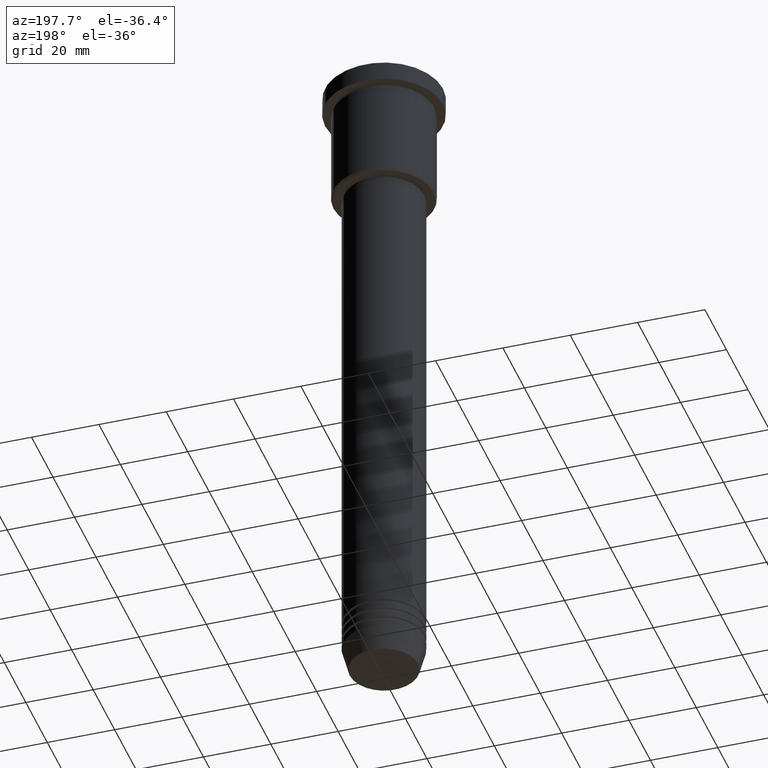
[diagram: clean part render]
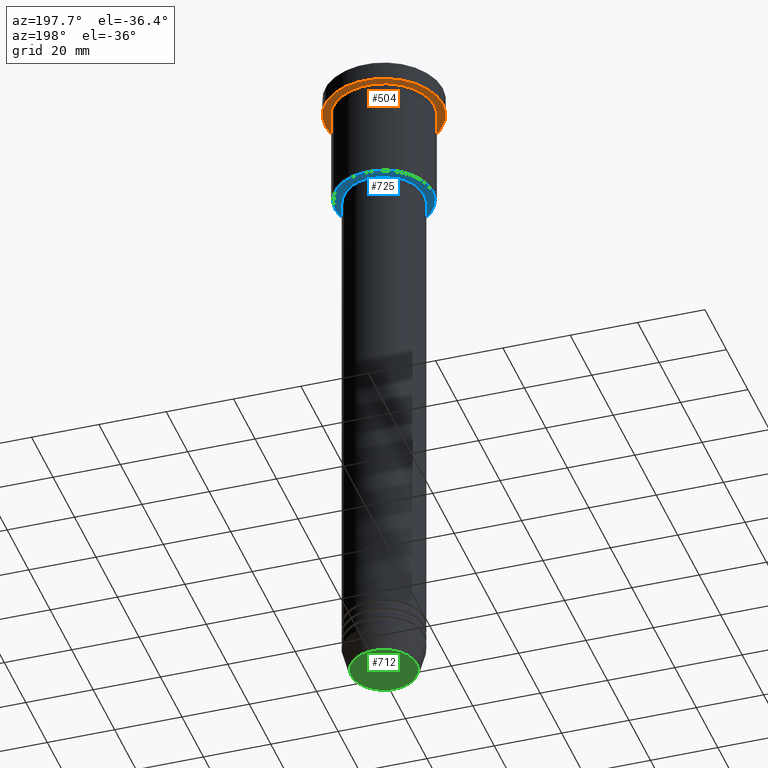
[diagram: same view with three faces highlighted in distinct colors, each labeled with its STEP entity id]
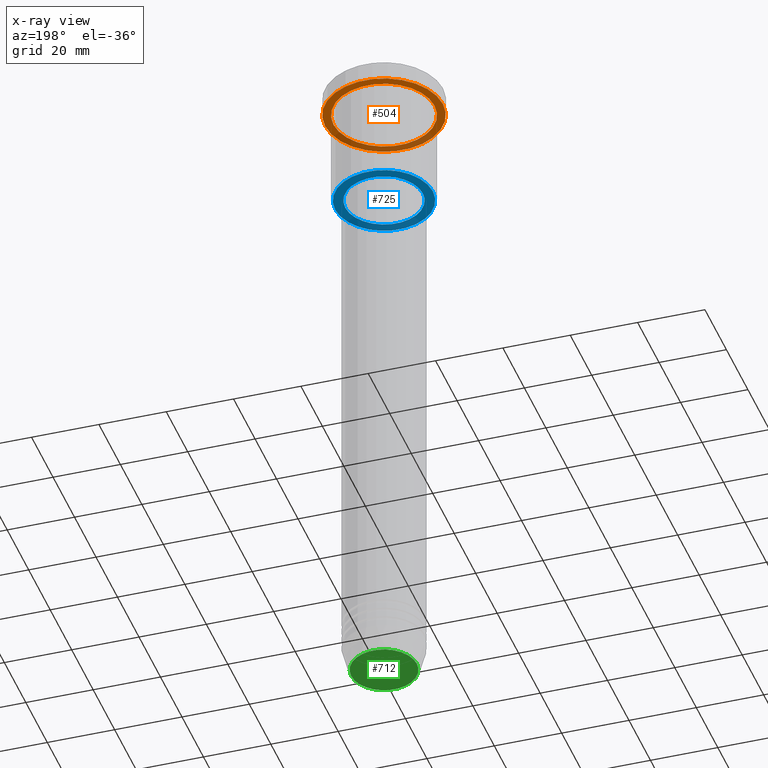
[diagram: x-ray of the same camera — body ghosted, the three highlighted faces saturated]
A machine part, auxiliary view with three faces highlighted in distinct colors.
The next image is the same camera in x-ray (body ghosted, the three faces saturated) — at least one of them is partly hidden behind the body in this view.
Their STEP definitions:

[orange] entity #504 — the highlighted planar face has unit normal (0, 0, -1).
#5 = AXIS2_PLACEMENT_3D ( 'NONE', #1050, #590, #950 ) ;
#15 = EDGE_LOOP ( 'NONE', ( #397, #513 ) ) ;
#24 = DIRECTION ( 'NONE',  ( -0.000000000000000000, -0.000000000000000000, 1.000000000000000000 ) ) ;
#57 = DIRECTION ( 'NONE',  ( -0.000000000000000000, -0.000000000000000000, 1.000000000000000000 ) ) ;
#149 = CIRCLE ( 'NONE', #1061, 15.00000000000000000 ) ;
#156 = CARTESIAN_POINT ( 'NONE',  ( 0.000000000000000000, 0.000000000000000000, -5.999999999999995559 ) ) ;
#201 = PLANE ( 'NONE',  #448 ) ;
#215 = DIRECTION ( 'NONE',  ( -1.000000000000000000, 0.000000000000000000, -0.000000000000000000 ) ) ;
#228 = CARTESIAN_POINT ( 'NONE',  ( 0.000000000000000000, 17.50000000000000000, -5.999999999999995559 ) ) ;
#268 = ORIENTED_EDGE ( 'NONE', *, *, #673, .T. ) ;
#277 = VERTEX_POINT ( 'NONE', #865 ) ;
#310 = CARTESIAN_POINT ( 'NONE',  ( 17.50000000000000000, 0.000000000000000000, -5.999999999999995559 ) ) ;
#389 = DIRECTION ( 'NONE',  ( 1.000000000000000000, 0.000000000000000000, 0.000000000000000000 ) ) ;
#397 = ORIENTED_EDGE ( 'NONE', *, *, #665, .F. ) ;
#417 = CARTESIAN_POINT ( 'NONE',  ( -15.00000000000000000, 0.000000000000000000, -5.999999999999994671 ) ) ;
#446 = VERTEX_POINT ( 'NONE', #310 ) ;
#448 = AXIS2_PLACEMENT_3D ( 'NONE', #228, #913, #215 ) ;
#466 = FACE_OUTER_BOUND ( 'NONE', #15, .T. ) ;
#504 = ADVANCED_FACE ( 'NONE', ( #918, #466 ), #201, .T. ) ;
#511 = EDGE_CURVE ( 'NONE', #277, #446, #826, .T. ) ;
#513 = ORIENTED_EDGE ( 'NONE', *, *, #511, .F. ) ;
#563 = CARTESIAN_POINT ( 'NONE',  ( 0.000000000000000000, 0.000000000000000000, -5.999999999999995559 ) ) ;
#590 = DIRECTION ( 'NONE',  ( -0.000000000000000000, -0.000000000000000000, 1.000000000000000000 ) ) ;
#613 = CIRCLE ( 'NONE', #5, 15.00000000000000000 ) ;
#665 = EDGE_CURVE ( 'NONE', #446, #277, #758, .T. ) ;
#670 = VERTEX_POINT ( 'NONE', #417 ) ;
#673 = EDGE_CURVE ( 'NONE', #670, #1044, #613, .T. ) ;
#698 = CARTESIAN_POINT ( 'NONE',  ( 15.00000000000000000, 1.836970198721029589E-15, -5.999999999999994671 ) ) ;
#705 = EDGE_LOOP ( 'NONE', ( #268, #764 ) ) ;
#758 = CIRCLE ( 'NONE', #1136, 17.50000000000000000 ) ;
#764 = ORIENTED_EDGE ( 'NONE', *, *, #806, .T. ) ;
#806 = EDGE_CURVE ( 'NONE', #1044, #670, #149, .T. ) ;
#826 = CIRCLE ( 'NONE', #943, 17.50000000000000000 ) ;
#865 = CARTESIAN_POINT ( 'NONE',  ( -17.50000000000000000, 2.143131898507868248E-15, -5.999999999999995559 ) ) ;
#913 = DIRECTION ( 'NONE',  ( 0.000000000000000000, 0.000000000000000000, -1.000000000000000000 ) ) ;
#918 = FACE_BOUND ( 'NONE', #705, .T. ) ;
#943 = AXIS2_PLACEMENT_3D ( 'NONE', #563, #24, #389 ) ;
#945 = DIRECTION ( 'NONE',  ( 1.000000000000000000, 0.000000000000000000, 0.000000000000000000 ) ) ;
#950 = DIRECTION ( 'NONE',  ( -1.000000000000000000, 0.000000000000000000, 0.000000000000000000 ) ) ;
#976 = CARTESIAN_POINT ( 'NONE',  ( 0.000000000000000000, 0.000000000000000000, -5.999999999999995559 ) ) ;
#1044 = VERTEX_POINT ( 'NONE', #698 ) ;
#1050 = CARTESIAN_POINT ( 'NONE',  ( 0.000000000000000000, 0.000000000000000000, -5.999999999999995559 ) ) ;
#1061 = AXIS2_PLACEMENT_3D ( 'NONE', #976, #1074, #1180 ) ;
#1074 = DIRECTION ( 'NONE',  ( -0.000000000000000000, -0.000000000000000000, 1.000000000000000000 ) ) ;
#1136 = AXIS2_PLACEMENT_3D ( 'NONE', #156, #57, #945 ) ;
#1180 = DIRECTION ( 'NONE',  ( -1.000000000000000000, 0.000000000000000000, 0.000000000000000000 ) ) ;

[blue] entity #725 — the highlighted planar face has unit normal (0, 0, -1).
#54 = CARTESIAN_POINT ( 'NONE',  ( 0.000000000000000000, 0.000000000000000000, -36.00000000000000711 ) ) ;
#102 = EDGE_LOOP ( 'NONE', ( #115, #453 ) ) ;
#115 = ORIENTED_EDGE ( 'NONE', *, *, #1132, .T. ) ;
#130 = DIRECTION ( 'NONE',  ( -0.000000000000000000, -0.000000000000000000, 1.000000000000000000 ) ) ;
#207 = DIRECTION ( 'NONE',  ( 0.000000000000000000, 0.000000000000000000, -1.000000000000000000 ) ) ;
#213 = AXIS2_PLACEMENT_3D ( 'NONE', #767, #130, #506 ) ;
#232 = AXIS2_PLACEMENT_3D ( 'NONE', #298, #1036, #1111 ) ;
#234 = CARTESIAN_POINT ( 'NONE',  ( 11.50000000000000000, 0.000000000000000000, -36.00000000000000711 ) ) ;
#261 = CARTESIAN_POINT ( 'NONE',  ( 14.50000000000003908, 0.000000000000000000, -36.00000000000000711 ) ) ;
#291 = EDGE_CURVE ( 'NONE', #379, #674, #941, .T. ) ;
#294 = CARTESIAN_POINT ( 'NONE',  ( 0.000000000000000000, 0.000000000000000000, -36.00000000000000711 ) ) ;
#298 = CARTESIAN_POINT ( 'NONE',  ( 0.000000000000000000, 0.000000000000000000, -36.00000000000000711 ) ) ;
#363 = FACE_OUTER_BOUND ( 'NONE', #565, .T. ) ;
#379 = VERTEX_POINT ( 'NONE', #261 ) ;
#406 = AXIS2_PLACEMENT_3D ( 'NONE', #54, #517, #545 ) ;
#435 = CARTESIAN_POINT ( 'NONE',  ( 0.000000000000000000, 15.00000000000000000, -36.00000000000000711 ) ) ;
#453 = ORIENTED_EDGE ( 'NONE', *, *, #476, .T. ) ;
#465 = CIRCLE ( 'NONE', #717, 14.50000000000003908 ) ;
#476 = EDGE_CURVE ( 'NONE', #1161, #1030, #519, .T. ) ;
#498 = EDGE_CURVE ( 'NONE', #674, #379, #465, .T. ) ;
#506 = DIRECTION ( 'NONE',  ( 1.000000000000000000, 0.000000000000000000, 0.000000000000000000 ) ) ;
#517 = DIRECTION ( 'NONE',  ( 0.000000000000000000, 0.000000000000000000, -1.000000000000000000 ) ) ;
#519 = CIRCLE ( 'NONE', #232, 11.50000000000000000 ) ;
#545 = DIRECTION ( 'NONE',  ( -1.000000000000000000, 0.000000000000000000, 0.000000000000000000 ) ) ;
#554 = AXIS2_PLACEMENT_3D ( 'NONE', #435, #626, #882 ) ;
#565 = EDGE_LOOP ( 'NONE', ( #610, #1128 ) ) ;
#582 = CARTESIAN_POINT ( 'NONE',  ( -11.50000000000000000, 1.408343819019456176E-15, -36.00000000000000711 ) ) ;
#610 = ORIENTED_EDGE ( 'NONE', *, *, #291, .T. ) ;
#626 = DIRECTION ( 'NONE',  ( 0.000000000000000000, 0.000000000000000000, -1.000000000000000000 ) ) ;
#632 = FACE_BOUND ( 'NONE', #102, .T. ) ;
#658 = DIRECTION ( 'NONE',  ( -1.000000000000000000, 0.000000000000000000, 0.000000000000000000 ) ) ;
#674 = VERTEX_POINT ( 'NONE', #1054 ) ;
#717 = AXIS2_PLACEMENT_3D ( 'NONE', #294, #207, #658 ) ;
#725 = ADVANCED_FACE ( 'NONE', ( #363, #632 ), #799, .T. ) ;
#740 = CIRCLE ( 'NONE', #213, 11.50000000000000000 ) ;
#767 = CARTESIAN_POINT ( 'NONE',  ( 0.000000000000000000, 0.000000000000000000, -36.00000000000000711 ) ) ;
#799 = PLANE ( 'NONE',  #554 ) ;
#882 = DIRECTION ( 'NONE',  ( -1.000000000000000000, 0.000000000000000000, -0.000000000000000000 ) ) ;
#941 = CIRCLE ( 'NONE', #406, 14.50000000000003908 ) ;
#1030 = VERTEX_POINT ( 'NONE', #234 ) ;
#1036 = DIRECTION ( 'NONE',  ( -0.000000000000000000, -0.000000000000000000, 1.000000000000000000 ) ) ;
#1054 = CARTESIAN_POINT ( 'NONE',  ( -14.50000000000003908, 1.806354028742348168E-15, -36.00000000000000711 ) ) ;
#1111 = DIRECTION ( 'NONE',  ( 1.000000000000000000, 0.000000000000000000, 0.000000000000000000 ) ) ;
#1128 = ORIENTED_EDGE ( 'NONE', *, *, #498, .T. ) ;
#1132 = EDGE_CURVE ( 'NONE', #1030, #1161, #740, .T. ) ;
#1161 = VERTEX_POINT ( 'NONE', #582 ) ;

[green] entity #712 — the highlighted planar face has unit normal (0, -0, 1).
#13 = CARTESIAN_POINT ( 'NONE',  ( 9.740692158992667160, 0.000000000000000000, -201.0000000000000000 ) ) ;
#96 = VERTEX_POINT ( 'NONE', #13 ) ;
#133 = DIRECTION ( 'NONE',  ( 0.000000000000000000, 0.000000000000000000, -1.000000000000000000 ) ) ;
#138 = PLANE ( 'NONE',  #1082 ) ;
#275 = DIRECTION ( 'NONE',  ( 0.000000000000000000, -0.000000000000000000, 1.000000000000000000 ) ) ;
#290 = EDGE_LOOP ( 'NONE', ( #1014, #643 ) ) ;
#321 = CIRCLE ( 'NONE', #349, 9.740692158992667160 ) ;
#334 = CARTESIAN_POINT ( 'NONE',  ( 0.000000000000000000, 0.000000000000000000, -201.0000000000000000 ) ) ;
#349 = AXIS2_PLACEMENT_3D ( 'NONE', #378, #938, #748 ) ;
#378 = CARTESIAN_POINT ( 'NONE',  ( 0.000000000000000000, 0.000000000000000000, -201.0000000000000000 ) ) ;
#459 = EDGE_CURVE ( 'NONE', #818, #96, #321, .T. ) ;
#489 = DIRECTION ( 'NONE',  ( 1.000000000000000000, 0.000000000000000000, 0.000000000000000000 ) ) ;
#502 = AXIS2_PLACEMENT_3D ( 'NONE', #334, #133, #489 ) ;
#522 = DIRECTION ( 'NONE',  ( 1.000000000000000000, 0.000000000000000000, 0.000000000000000000 ) ) ;
#531 = CARTESIAN_POINT ( 'NONE',  ( 0.000000000000000000, 0.000000000000000000, -201.0000000000000000 ) ) ;
#535 = CARTESIAN_POINT ( 'NONE',  ( -9.740692158992667160, 1.222463696683475393E-15, -201.0000000000000000 ) ) ;
#643 = ORIENTED_EDGE ( 'NONE', *, *, #459, .T. ) ;
#679 = FACE_OUTER_BOUND ( 'NONE', #290, .T. ) ;
#695 = EDGE_CURVE ( 'NONE', #96, #818, #905, .T. ) ;
#712 = ADVANCED_FACE ( 'NONE', ( #679 ), #138, .F. ) ;
#748 = DIRECTION ( 'NONE',  ( 1.000000000000000000, 0.000000000000000000, 0.000000000000000000 ) ) ;
#818 = VERTEX_POINT ( 'NONE', #535 ) ;
#905 = CIRCLE ( 'NONE', #502, 9.740692158992667160 ) ;
#938 = DIRECTION ( 'NONE',  ( 0.000000000000000000, 0.000000000000000000, -1.000000000000000000 ) ) ;
#1014 = ORIENTED_EDGE ( 'NONE', *, *, #695, .T. ) ;
#1082 = AXIS2_PLACEMENT_3D ( 'NONE', #531, #275, #522 ) ;